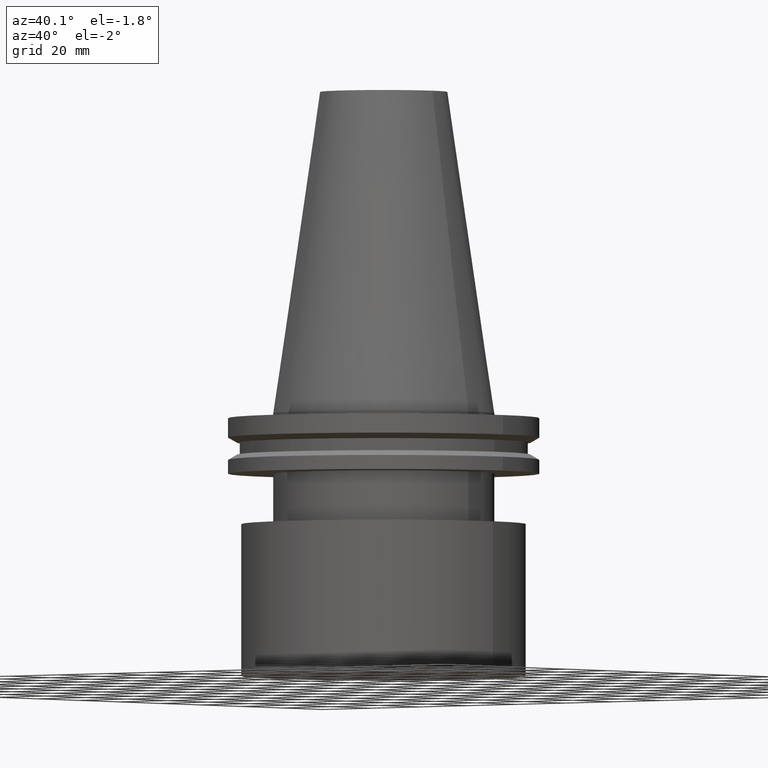
[diagram: clean part render]
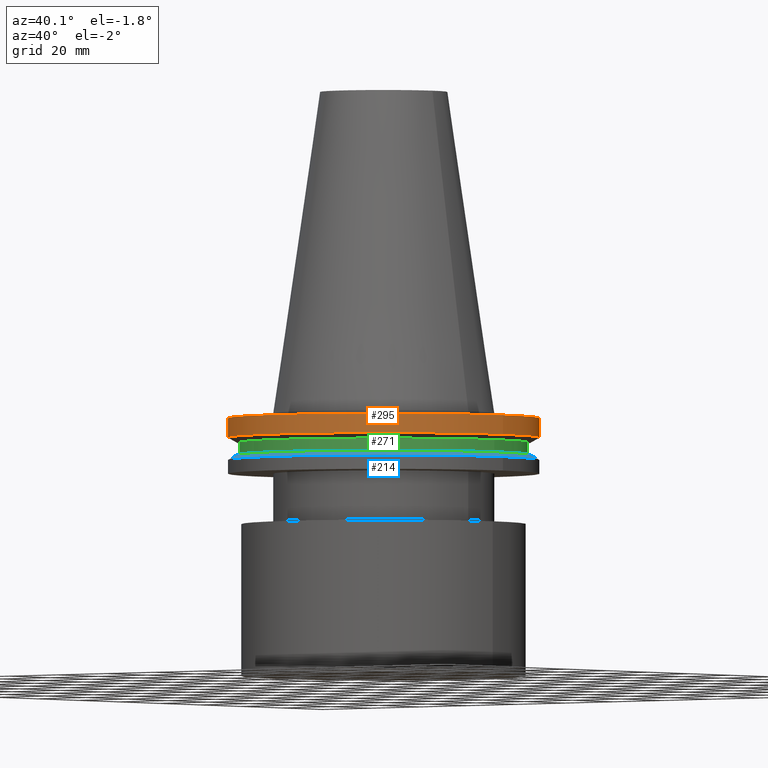
[diagram: same view with three faces highlighted in distinct colors, each labeled with its STEP entity id]
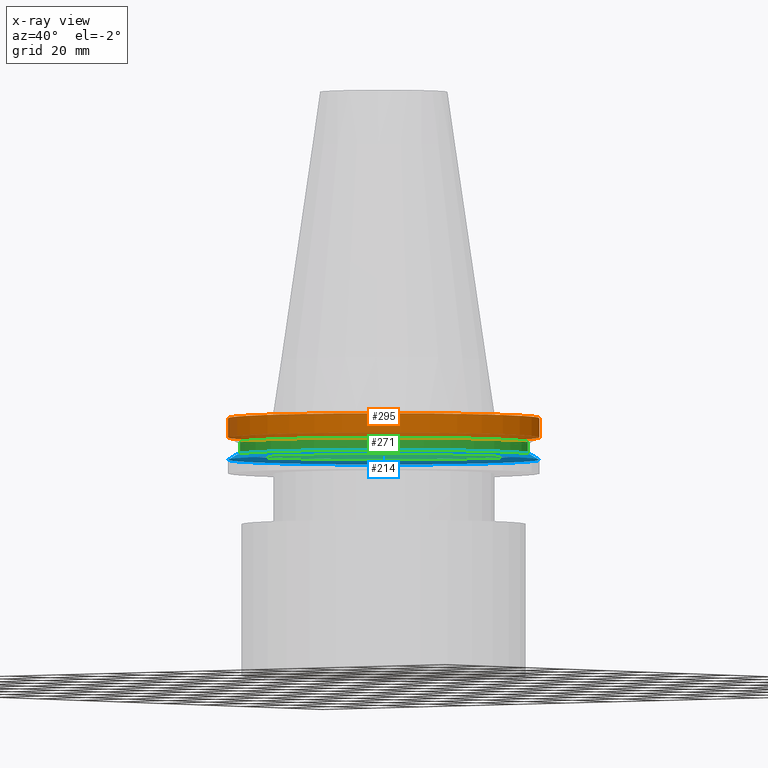
[diagram: x-ray of the same camera — body ghosted, the three highlighted faces saturated]
A machine part, auxiliary view with three faces highlighted in distinct colors.
The next image is the same camera in x-ray (body ghosted, the three faces saturated) — at least one of them is partly hidden behind the body in this view.
Their STEP definitions:

[orange] entity #295 — the highlighted cylindrical surface (bore or boss wall) has radius 49.215 mm, axis along (-0, -0, 1).
#2 = ORIENTED_EDGE ( 'NONE', *, *, #364, .T. ) ;
#11 = FACE_OUTER_BOUND ( 'NONE', #244, .T. ) ;
#32 = AXIS2_PLACEMENT_3D ( 'NONE', #130, #287, #354 ) ;
#48 = FACE_OUTER_BOUND ( 'NONE', #306, .T. ) ;
#110 = CARTESIAN_POINT ( 'NONE',  ( 0.000000000000000000, 0.000000000000000000, -7.602389855251287187 ) ) ;
#127 = DIRECTION ( 'NONE',  ( -0.000000000000000000, -0.000000000000000000, 1.000000000000000000 ) ) ;
#130 = CARTESIAN_POINT ( 'NONE',  ( 0.000000000000000000, 0.000000000000000000, -1.499999999999987566 ) ) ;
#161 = CARTESIAN_POINT ( 'NONE',  ( 0.000000000000000000, 0.000000000000000000, 101.5999999999999943 ) ) ;
#164 = CYLINDRICAL_SURFACE ( 'NONE', #370, 49.21499999999999631 ) ;
#219 = DIRECTION ( 'NONE',  ( -0.000000000000000000, -0.000000000000000000, 1.000000000000000000 ) ) ;
#232 = CIRCLE ( 'NONE', #391, 49.21500000000000341 ) ;
#235 = CARTESIAN_POINT ( 'NONE',  ( 49.21500000000000341, 0.000000000000000000, -7.602389855251287187 ) ) ;
#244 = EDGE_LOOP ( 'NONE', ( #2 ) ) ;
#257 = DIRECTION ( 'NONE',  ( 1.000000000000000000, 0.000000000000000000, 0.000000000000000000 ) ) ;
#287 = DIRECTION ( 'NONE',  ( -0.000000000000000000, -0.000000000000000000, 1.000000000000000000 ) ) ;
#294 = EDGE_CURVE ( 'NONE', #390, #390, #302, .T. ) ;
#295 = ADVANCED_FACE ( 'NONE', ( #48, #11 ), #164, .T. ) ;
#298 = VERTEX_POINT ( 'NONE', #235 ) ;
#302 = CIRCLE ( 'NONE', #32, 49.21499999999999631 ) ;
#306 = EDGE_LOOP ( 'NONE', ( #362 ) ) ;
#325 = DIRECTION ( 'NONE',  ( 1.000000000000000000, 0.000000000000000000, 0.000000000000000000 ) ) ;
#354 = DIRECTION ( 'NONE',  ( 1.000000000000000000, 0.000000000000000000, 0.000000000000000000 ) ) ;
#361 = CARTESIAN_POINT ( 'NONE',  ( 49.21499999999999631, 0.000000000000000000, -1.499999999999987566 ) ) ;
#362 = ORIENTED_EDGE ( 'NONE', *, *, #294, .F. ) ;
#364 = EDGE_CURVE ( 'NONE', #298, #298, #232, .T. ) ;
#370 = AXIS2_PLACEMENT_3D ( 'NONE', #161, #127, #257 ) ;
#390 = VERTEX_POINT ( 'NONE', #361 ) ;
#391 = AXIS2_PLACEMENT_3D ( 'NONE', #110, #219, #325 ) ;

[blue] entity #214 — the highlighted conical surface has half-angle 60 deg.
#5 = AXIS2_PLACEMENT_3D ( 'NONE', #267, #389, #318 ) ;
#25 = CONICAL_SURFACE ( 'NONE', #45, 49.21499999999998920, 1.047197551196554333 ) ;
#36 = FACE_OUTER_BOUND ( 'NONE', #213, .T. ) ;
#39 = EDGE_CURVE ( 'NONE', #358, #358, #314, .T. ) ;
#45 = AXIS2_PLACEMENT_3D ( 'NONE', #375, #154, #223 ) ;
#51 = ORIENTED_EDGE ( 'NONE', *, *, #79, .F. ) ;
#64 = CARTESIAN_POINT ( 'NONE',  ( 49.21499999999998920, 0.000000000000000000, -14.65761014474876944 ) ) ;
#79 = EDGE_CURVE ( 'NONE', #189, #189, #360, .T. ) ;
#125 = CARTESIAN_POINT ( 'NONE',  ( 0.000000000000000000, 0.000000000000000000, -13.05499999999999794 ) ) ;
#154 = DIRECTION ( 'NONE',  ( 0.000000000000000000, 0.000000000000000000, -1.000000000000000000 ) ) ;
#184 = DIRECTION ( 'NONE',  ( -0.000000000000000000, -0.000000000000000000, 1.000000000000000000 ) ) ;
#189 = VERTEX_POINT ( 'NONE', #237 ) ;
#213 = EDGE_LOOP ( 'NONE', ( #348 ) ) ;
#214 = ADVANCED_FACE ( 'NONE', ( #309, #36 ), #25, .T. ) ;
#223 = DIRECTION ( 'NONE',  ( -1.000000000000000000, 0.000000000000000000, 0.000000000000000000 ) ) ;
#237 = CARTESIAN_POINT ( 'NONE',  ( 46.43919780457007818, 0.000000000000000000, -13.05499999999999794 ) ) ;
#242 = EDGE_LOOP ( 'NONE', ( #51 ) ) ;
#267 = CARTESIAN_POINT ( 'NONE',  ( 0.000000000000000000, 0.000000000000000000, -14.65761014474876944 ) ) ;
#275 = DIRECTION ( 'NONE',  ( 1.000000000000000000, 0.000000000000000000, 0.000000000000000000 ) ) ;
#309 = FACE_BOUND ( 'NONE', #242, .T. ) ;
#314 = CIRCLE ( 'NONE', #5, 49.21499999999998920 ) ;
#318 = DIRECTION ( 'NONE',  ( 1.000000000000000000, 0.000000000000000000, 0.000000000000000000 ) ) ;
#348 = ORIENTED_EDGE ( 'NONE', *, *, #39, .T. ) ;
#358 = VERTEX_POINT ( 'NONE', #64 ) ;
#360 = CIRCLE ( 'NONE', #371, 46.43919780457007818 ) ;
#371 = AXIS2_PLACEMENT_3D ( 'NONE', #125, #184, #275 ) ;
#375 = CARTESIAN_POINT ( 'NONE',  ( 0.000000000000000000, 0.000000000000000000, -14.65761014474876944 ) ) ;
#389 = DIRECTION ( 'NONE',  ( -0.000000000000000000, -0.000000000000000000, 1.000000000000000000 ) ) ;

[green] entity #271 — the highlighted cylindrical surface (bore or boss wall) has radius 45.645 mm, axis along (-0, -0, 1).
#9 = ORIENTED_EDGE ( 'NONE', *, *, #265, .T. ) ;
#16 = CARTESIAN_POINT ( 'NONE',  ( 0.000000000000000000, 0.000000000000000000, -13.05499999999999794 ) ) ;
#18 = DIRECTION ( 'NONE',  ( -0.000000000000000000, -0.000000000000000000, 1.000000000000000000 ) ) ;
#44 = DIRECTION ( 'NONE',  ( -0.000000000000000000, -0.000000000000000000, 1.000000000000000000 ) ) ;
#73 = AXIS2_PLACEMENT_3D ( 'NONE', #167, #44, #283 ) ;
#75 = DIRECTION ( 'NONE',  ( 1.000000000000000000, 0.000000000000000000, 0.000000000000000000 ) ) ;
#78 = FACE_OUTER_BOUND ( 'NONE', #148, .T. ) ;
#112 = CARTESIAN_POINT ( 'NONE',  ( 45.64500000000000313, 0.000000000000000000, -9.204999999999991189 ) ) ;
#132 = CARTESIAN_POINT ( 'NONE',  ( 0.000000000000000000, 0.000000000000000000, 101.5999999999999943 ) ) ;
#135 = DIRECTION ( 'NONE',  ( -0.000000000000000000, -0.000000000000000000, 1.000000000000000000 ) ) ;
#148 = EDGE_LOOP ( 'NONE', ( #9 ) ) ;
#167 = CARTESIAN_POINT ( 'NONE',  ( 0.000000000000000000, 0.000000000000000000, -9.204999999999991189 ) ) ;
#181 = EDGE_LOOP ( 'NONE', ( #188 ) ) ;
#188 = ORIENTED_EDGE ( 'NONE', *, *, #277, .F. ) ;
#195 = CIRCLE ( 'NONE', #73, 45.64500000000000313 ) ;
#231 = VERTEX_POINT ( 'NONE', #112 ) ;
#233 = VERTEX_POINT ( 'NONE', #332 ) ;
#246 = AXIS2_PLACEMENT_3D ( 'NONE', #132, #135, #75 ) ;
#265 = EDGE_CURVE ( 'NONE', #233, #233, #373, .T. ) ;
#268 = AXIS2_PLACEMENT_3D ( 'NONE', #16, #18, #327 ) ;
#271 = ADVANCED_FACE ( 'NONE', ( #320, #78 ), #384, .T. ) ;
#277 = EDGE_CURVE ( 'NONE', #231, #231, #195, .T. ) ;
#283 = DIRECTION ( 'NONE',  ( 1.000000000000000000, 0.000000000000000000, 0.000000000000000000 ) ) ;
#320 = FACE_OUTER_BOUND ( 'NONE', #181, .T. ) ;
#327 = DIRECTION ( 'NONE',  ( 1.000000000000000000, 0.000000000000000000, 0.000000000000000000 ) ) ;
#332 = CARTESIAN_POINT ( 'NONE',  ( 45.64500000000000313, 0.000000000000000000, -13.05499999999999794 ) ) ;
#373 = CIRCLE ( 'NONE', #268, 45.64500000000000313 ) ;
#384 = CYLINDRICAL_SURFACE ( 'NONE', #246, 45.64500000000000313 ) ;